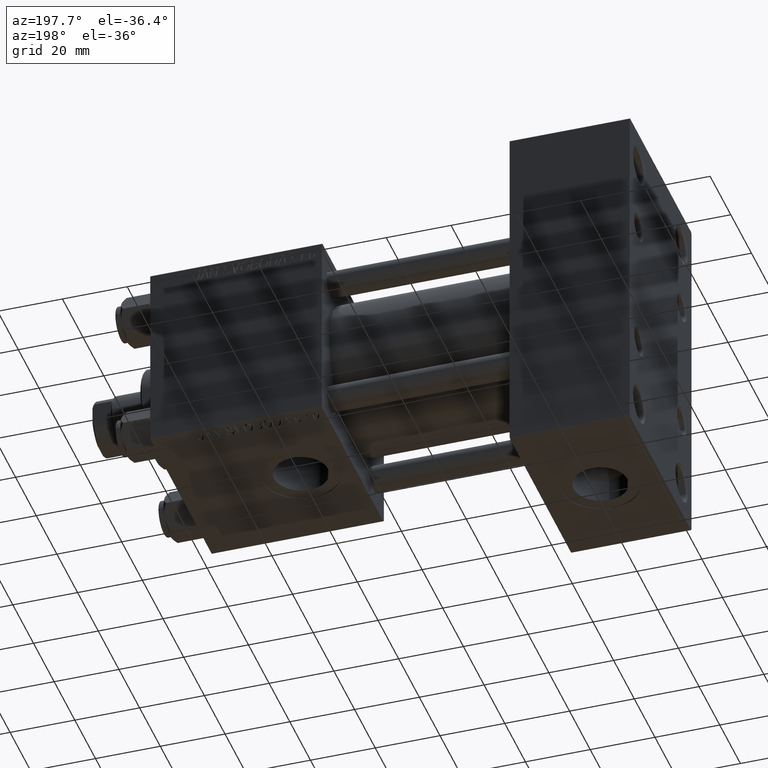
[diagram: clean part render]
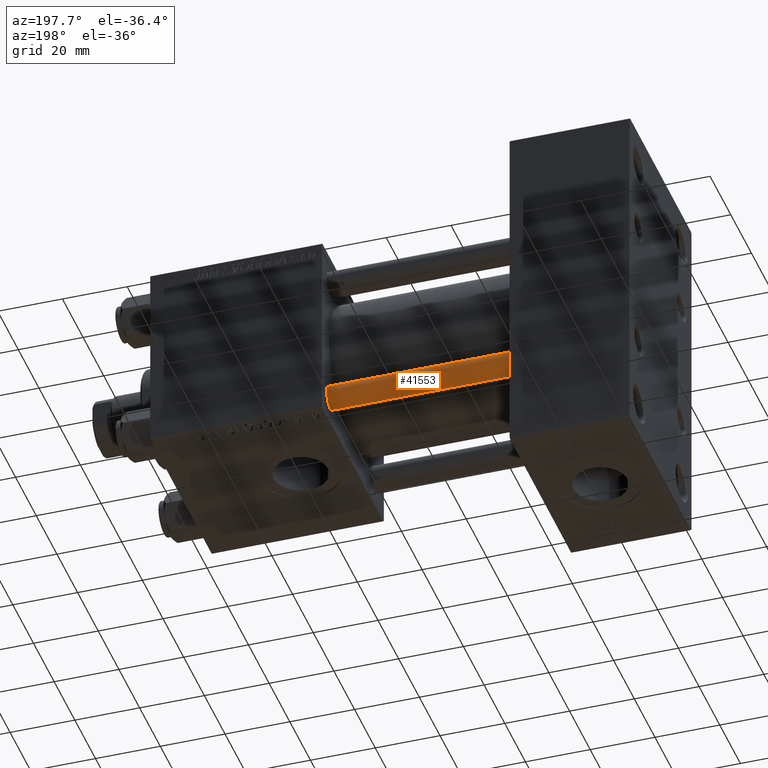
[diagram: same view with one face highlighted and labeled with its STEP entity id]
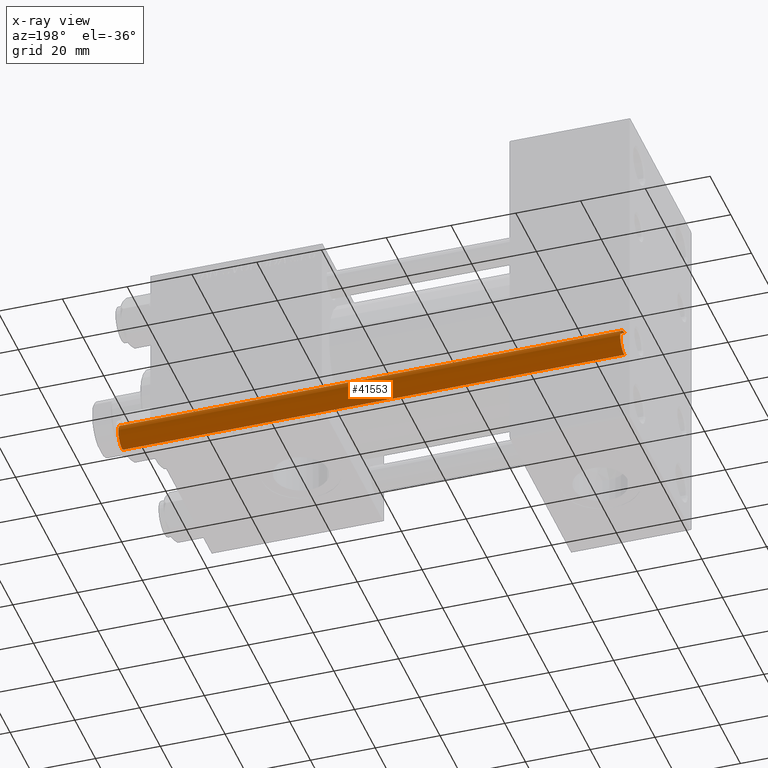
[diagram: x-ray of the same camera — body ghosted, the highlighted face saturated]
A machine part, auxiliary view. The second image highlights one B-rep face of the part: STEP entity #41553.
The next image is the same camera in x-ray: the body ghosted, the highlighted face saturated — about 0% of this face is hidden behind the body in this view.
In plain terms, the highlighted cylindrical surface (edge-blend (fillet) strip) has radius 4 mm, axis along (-1, 0, 0).
Its self-contained STEP definition (entity closure, byte-faithful):
#813 = DIRECTION ( 'NONE',  ( 1.000000000000000000, 0.000000000000000000, 0.000000000000000000 ) ) ;
#2646 = VERTEX_POINT ( 'NONE', #46710 ) ;
#4505 = DIRECTION ( 'NONE',  ( -0.000000000000000000, -0.000000000000000000, -1.000000000000000000 ) ) ;
#5537 = DIRECTION ( 'NONE',  ( -0.000000000000000000, -0.000000000000000000, 1.000000000000000000 ) ) ;
#5996 = DIRECTION ( 'NONE',  ( -1.000000000000000000, 0.000000000000000000, 0.000000000000000000 ) ) ;
#6785 = AXIS2_PLACEMENT_3D ( 'NONE', #30745, #29714, #5996 ) ;
#10484 = CYLINDRICAL_SURFACE ( 'NONE', #6785, 4.000000000000000000 ) ;
#10699 = VECTOR ( 'NONE', #4505, 1000.000000000000000 ) ;
#10916 = ORIENTED_EDGE ( 'NONE', *, *, #22261, .F. ) ;
#11215 = CARTESIAN_POINT ( 'NONE',  ( -4.000000000000000000, 0.000000000000000000, 0.5000000000000281997 ) ) ;
#12920 = LINE ( 'NONE', #48723, #10699 ) ;
#13317 = VERTEX_POINT ( 'NONE', #24325 ) ;
#14233 = EDGE_LOOP ( 'NONE', ( #10916, #42048, #42077, #45339 ) ) ;
#19333 = VERTEX_POINT ( 'NONE', #11215 ) ;
#22261 = EDGE_CURVE ( 'NONE', #13317, #34305, #12920, .T. ) ;
#24325 = CARTESIAN_POINT ( 'NONE',  ( 4.000000000000000000, 4.898587196589412829E-16, 155.5000000000000284 ) ) ;
#27164 = CIRCLE ( 'NONE', #41456, 4.000000000000000000 ) ;
#27697 = AXIS2_PLACEMENT_3D ( 'NONE', #33445, #5537, #813 ) ;
#29714 = DIRECTION ( 'NONE',  ( -0.000000000000000000, -0.000000000000000000, -1.000000000000000000 ) ) ;
#30560 = CARTESIAN_POINT ( 'NONE',  ( 0.000000000000000000, 0.000000000000000000, 155.5000000000000284 ) ) ;
#30745 = CARTESIAN_POINT ( 'NONE',  ( 0.000000000000000000, 0.000000000000000000, 156.0000000000000000 ) ) ;
#32070 = EDGE_CURVE ( 'NONE', #2646, #19333, #41191, .T. ) ;
#33292 = CARTESIAN_POINT ( 'NONE',  ( -4.000000000000000000, 0.000000000000000000, 156.0000000000000000 ) ) ;
#33445 = CARTESIAN_POINT ( 'NONE',  ( 0.000000000000000000, 0.000000000000000000, 0.5000000000000281997 ) ) ;
#34305 = VERTEX_POINT ( 'NONE', #36750 ) ;
#36421 = EDGE_CURVE ( 'NONE', #13317, #2646, #27164, .T. ) ;
#36750 = CARTESIAN_POINT ( 'NONE',  ( 4.000000000000000000, 4.898587196589412829E-16, 0.5000000000000281997 ) ) ;
#38642 = FACE_OUTER_BOUND ( 'NONE', #14233, .T. ) ;
#38980 = DIRECTION ( 'NONE',  ( 0.000000000000000000, 0.000000000000000000, -1.000000000000000000 ) ) ;
#39245 = EDGE_CURVE ( 'NONE', #19333, #34305, #50391, .T. ) ;
#41191 = LINE ( 'NONE', #33292, #43738 ) ;
#41456 = AXIS2_PLACEMENT_3D ( 'NONE', #30560, #38980, #46610 ) ;
#41553 = ADVANCED_FACE ( 'NONE', ( #38642 ), #10484, .T. ) ;
#42048 = ORIENTED_EDGE ( 'NONE', *, *, #36421, .T. ) ;
#42077 = ORIENTED_EDGE ( 'NONE', *, *, #32070, .T. ) ;
#43738 = VECTOR ( 'NONE', #49619, 1000.000000000000000 ) ;
#45339 = ORIENTED_EDGE ( 'NONE', *, *, #39245, .T. ) ;
#46610 = DIRECTION ( 'NONE',  ( 1.000000000000000000, 0.000000000000000000, 0.000000000000000000 ) ) ;
#46710 = CARTESIAN_POINT ( 'NONE',  ( -4.000000000000000000, 0.000000000000000000, 155.5000000000000284 ) ) ;
#48723 = CARTESIAN_POINT ( 'NONE',  ( 4.000000000000000000, 4.898587196589412829E-16, 156.0000000000000000 ) ) ;
#49619 = DIRECTION ( 'NONE',  ( -0.000000000000000000, -0.000000000000000000, -1.000000000000000000 ) ) ;
#50391 = CIRCLE ( 'NONE', #27697, 4.000000000000000000 ) ;